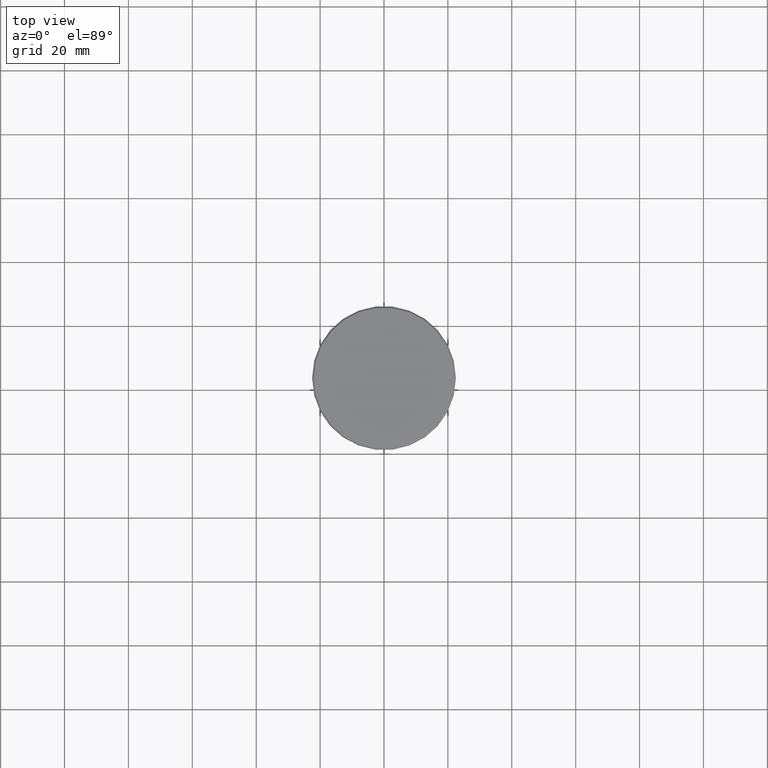
[diagram: clean part render]
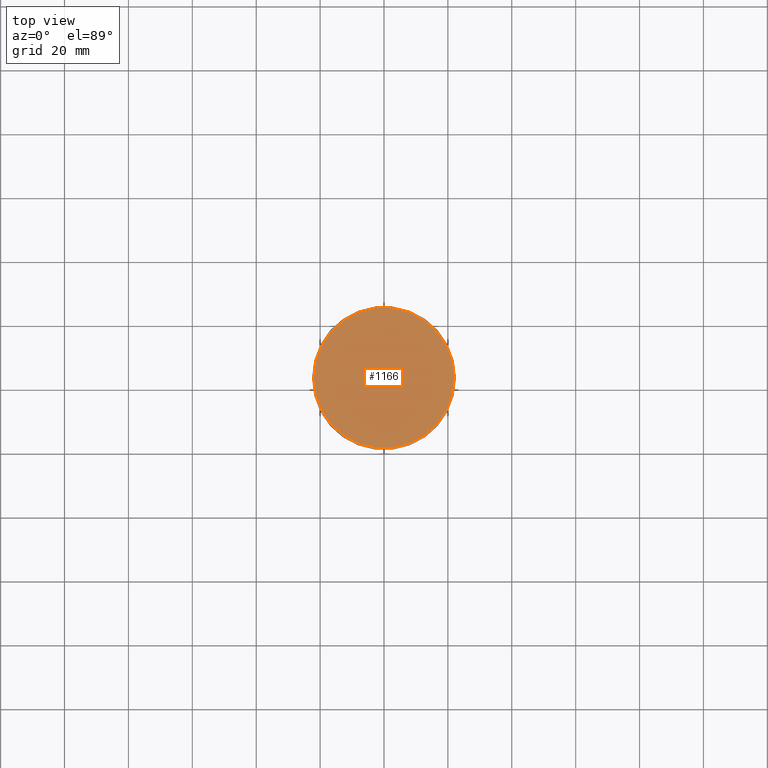
[diagram: same view with one face highlighted and labeled with its STEP entity id]
A machine part, top view. The second image highlights one B-rep face of the part: STEP entity #1166.
In plain terms, the highlighted planar face has unit normal (0, -0, 1).
Its self-contained STEP definition (entity closure, byte-faithful):
#2 = VERTEX_POINT ( 'NONE', #520 ) ;
#34 = AXIS2_PLACEMENT_3D ( 'NONE', #675, #588, #115 ) ;
#111 = DIRECTION ( 'NONE',  ( -0.000000000000000000, -0.000000000000000000, 1.000000000000000000 ) ) ;
#115 = DIRECTION ( 'NONE',  ( 1.000000000000000000, 0.000000000000000000, 0.000000000000000000 ) ) ;
#119 = FACE_OUTER_BOUND ( 'NONE', #290, .T. ) ;
#151 = VERTEX_POINT ( 'NONE', #455 ) ;
#163 = DIRECTION ( 'NONE',  ( -0.000000000000000000, -0.000000000000000000, 1.000000000000000000 ) ) ;
#191 = CARTESIAN_POINT ( 'NONE',  ( 0.000000000000000000, 0.000000000000000000, 0.000000000000000000 ) ) ;
#290 = EDGE_LOOP ( 'NONE', ( #1126, #798 ) ) ;
#397 = CIRCLE ( 'NONE', #1053, 21.99999999999996447 ) ;
#455 = CARTESIAN_POINT ( 'NONE',  ( 21.99999999999996447, 2.724839128102858624E-15, 0.000000000000000000 ) ) ;
#493 = EDGE_CURVE ( 'NONE', #2, #151, #397, .T. ) ;
#520 = CARTESIAN_POINT ( 'NONE',  ( -21.99999999999996447, 0.000000000000000000, 0.000000000000000000 ) ) ;
#588 = DIRECTION ( 'NONE',  ( 0.000000000000000000, -0.000000000000000000, 1.000000000000000000 ) ) ;
#675 = CARTESIAN_POINT ( 'NONE',  ( 0.000000000000000000, 0.000000000000000000, 0.000000000000000000 ) ) ;
#771 = PLANE ( 'NONE',  #34 ) ;
#798 = ORIENTED_EDGE ( 'NONE', *, *, #828, .T. ) ;
#828 = EDGE_CURVE ( 'NONE', #151, #2, #892, .T. ) ;
#892 = CIRCLE ( 'NONE', #984, 21.99999999999996447 ) ;
#962 = DIRECTION ( 'NONE',  ( 1.000000000000000000, 0.000000000000000000, 0.000000000000000000 ) ) ;
#984 = AXIS2_PLACEMENT_3D ( 'NONE', #1047, #163, #962 ) ;
#1047 = CARTESIAN_POINT ( 'NONE',  ( 0.000000000000000000, 0.000000000000000000, 0.000000000000000000 ) ) ;
#1053 = AXIS2_PLACEMENT_3D ( 'NONE', #191, #111, #1082 ) ;
#1082 = DIRECTION ( 'NONE',  ( 1.000000000000000000, 0.000000000000000000, 0.000000000000000000 ) ) ;
#1126 = ORIENTED_EDGE ( 'NONE', *, *, #493, .T. ) ;
#1166 = ADVANCED_FACE ( 'NONE', ( #119 ), #771, .T. ) ;